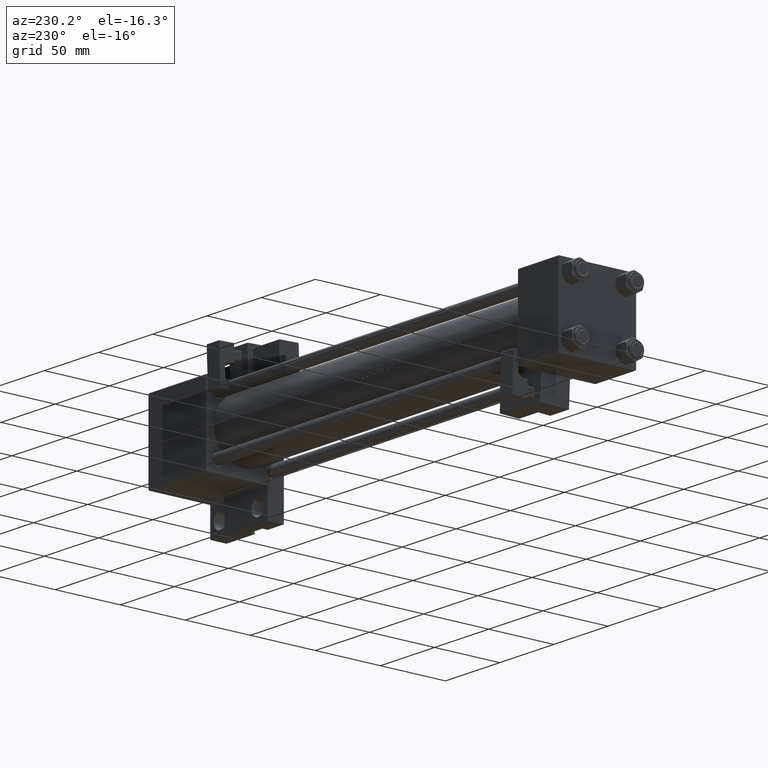
[diagram: clean part render]
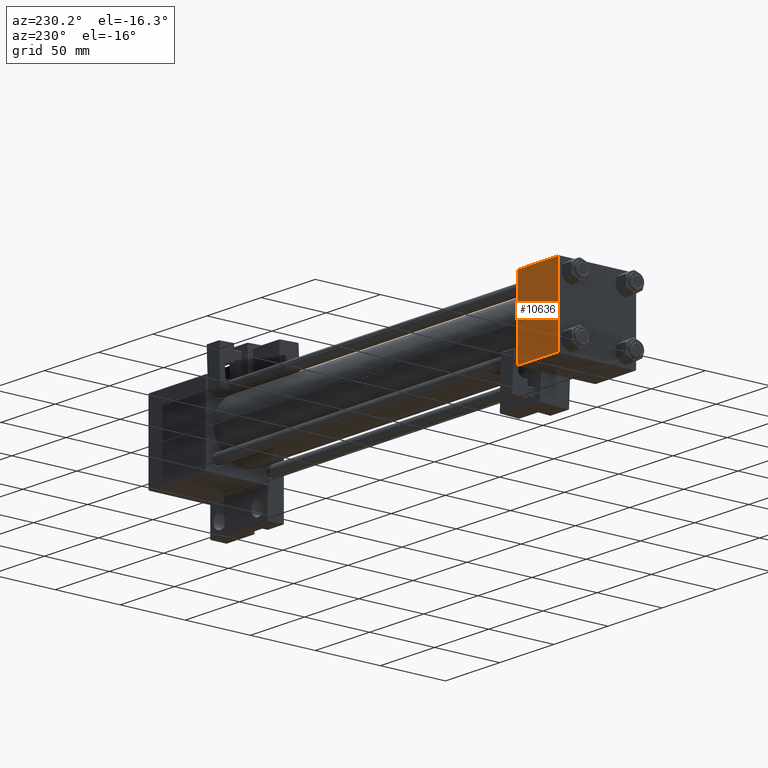
[diagram: same view with one face highlighted and labeled with its STEP entity id]
A machine part, auxiliary view. The second image highlights one B-rep face of the part: STEP entity #10636.
In plain terms, the highlighted planar face has unit normal (0, -1, -0).
Its self-contained STEP definition (entity closure, byte-faithful):
#214 = CARTESIAN_POINT ( 'NONE',  ( 37.00000000000000000, -29.50000000000000000, 29.99999999999999289 ) ) ;
#2220 = VERTEX_POINT ( 'NONE', #42730 ) ;
#2722 = EDGE_CURVE ( 'NONE', #29211, #44701, #11515, .T. ) ;
#6171 = ORIENTED_EDGE ( 'NONE', *, *, #9142, .T. ) ;
#6601 = DIRECTION ( 'NONE',  ( 0.000000000000000000, -1.000000000000000000, -1.156482317317871725E-16 ) ) ;
#7490 = VECTOR ( 'NONE', #7930, 1000.000000000000000 ) ;
#7930 = DIRECTION ( 'NONE',  ( 1.000000000000000000, 0.000000000000000000, 0.000000000000000000 ) ) ;
#9142 = EDGE_CURVE ( 'NONE', #50510, #29211, #12734, .T. ) ;
#10636 = ADVANCED_FACE ( 'NONE', ( #17746 ), #20112, .F. ) ;
#11515 = LINE ( 'NONE', #214, #7490 ) ;
#12550 = CARTESIAN_POINT ( 'NONE',  ( 0.000000000000000000, -29.49999999999998579, 29.99999999999999289 ) ) ;
#12734 = LINE ( 'NONE', #40624, #25704 ) ;
#13143 = EDGE_LOOP ( 'NONE', ( #6171, #50674, #20228, #16425 ) ) ;
#15890 = AXIS2_PLACEMENT_3D ( 'NONE', #37081, #43849, #47454 ) ;
#16425 = ORIENTED_EDGE ( 'NONE', *, *, #26413, .T. ) ;
#17746 = FACE_OUTER_BOUND ( 'NONE', #13143, .T. ) ;
#18185 = EDGE_CURVE ( 'NONE', #2220, #44701, #26186, .T. ) ;
#20112 = PLANE ( 'NONE',  #15890 ) ;
#20228 = ORIENTED_EDGE ( 'NONE', *, *, #18185, .F. ) ;
#25125 = DIRECTION ( 'NONE',  ( 0.000000000000000000, -1.000000000000000000, -1.156482317317871725E-16 ) ) ;
#25704 = VECTOR ( 'NONE', #25125, 1000.000000000000000 ) ;
#26186 = LINE ( 'NONE', #38830, #33571 ) ;
#26413 = EDGE_CURVE ( 'NONE', #2220, #50510, #27970, .T. ) ;
#27970 = LINE ( 'NONE', #47069, #48050 ) ;
#29211 = VERTEX_POINT ( 'NONE', #12550 ) ;
#33571 = VECTOR ( 'NONE', #6601, 1000.000000000000000 ) ;
#33932 = CARTESIAN_POINT ( 'NONE',  ( 37.00000000000000000, -29.49999999999998579, 29.99999999999999289 ) ) ;
#36534 = CARTESIAN_POINT ( 'NONE',  ( 0.000000000000000000, 29.49999999999999289, 30.00000000000000000 ) ) ;
#37081 = CARTESIAN_POINT ( 'NONE',  ( 37.00000000000000000, 29.99999999999999289, 30.00000000000000000 ) ) ;
#38830 = CARTESIAN_POINT ( 'NONE',  ( 37.00000000000000000, 29.99999999999999289, 30.00000000000000000 ) ) ;
#40624 = CARTESIAN_POINT ( 'NONE',  ( 0.000000000000000000, 29.99999999999999289, 30.00000000000000000 ) ) ;
#42730 = CARTESIAN_POINT ( 'NONE',  ( 37.00000000000000000, 29.49999999999999289, 30.00000000000000000 ) ) ;
#43709 = DIRECTION ( 'NONE',  ( -1.000000000000000000, 0.000000000000000000, 0.000000000000000000 ) ) ;
#43849 = DIRECTION ( 'NONE',  ( 0.000000000000000000, 1.156482317317871725E-16, -1.000000000000000000 ) ) ;
#44701 = VERTEX_POINT ( 'NONE', #33932 ) ;
#47069 = CARTESIAN_POINT ( 'NONE',  ( 0.000000000000000000, 29.49999999999999289, 30.00000000000000000 ) ) ;
#47454 = DIRECTION ( 'NONE',  ( 0.000000000000000000, 1.000000000000000000, 1.156482317317871725E-16 ) ) ;
#48050 = VECTOR ( 'NONE', #43709, 1000.000000000000000 ) ;
#50510 = VERTEX_POINT ( 'NONE', #36534 ) ;
#50674 = ORIENTED_EDGE ( 'NONE', *, *, #2722, .T. ) ;